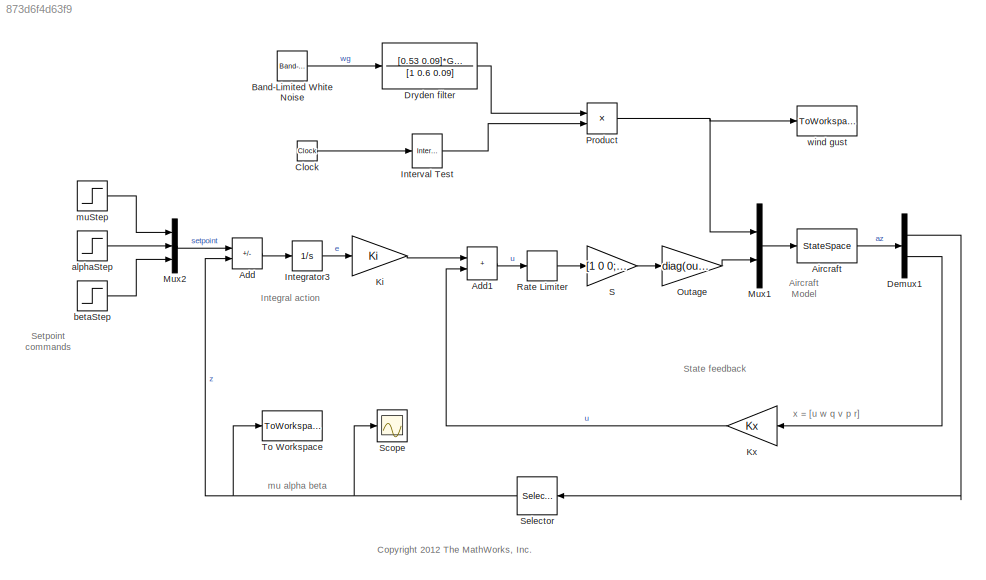
MODEL slx_873d6f4d63f9
KIND model
CONFIG AbsTol = auto
CONFIG EnableMultiTasking = on
CONFIG FixedStep = auto
CONFIG MaxStep = auto
CONFIG MinStep = auto
CONFIG PreLoadFcn = load faultTolerantAircraft
CONFIG RelTol = 1e-3
CONFIG SampleTimeConstraint = Unconstrained
CONFIG SolverName = ode45
CONFIG StartTime = 0.0
CONFIG StopTime = 10
BLOCK [Sum] Add
  IconShape = rectangular
  Inputs = +-
BLOCK [Sum] Add1
  IconShape = rectangular
BLOCK [StateSpace] Aircraft
  A = Aac
  B = Bac
  C = Cac
  D = Dac
  InitialCondition = 0
BLOCK [Reference] Band-Limited White Noise  REF=simulink/Sources/Band-Limited
White Noise
  SourceBlock = simulink/Sources/Band-Limited\nWhite Noise
  SourceType = Band-Limited White Noise.
BLOCK [Clock] Clock
BLOCK [Demux] Demux1
  Outputs = 2
BLOCK [TransferFcn] Dryden filter
  Denominator = [1  0.6  0.09]
  Numerator = [0.53 0.09]*GustSpeed
BLOCK [Integrator] Integrator3
BLOCK [Reference] Interval Test  REF=simulink/Logic and Bit
Operations/Interval Test
  SourceBlock = simulink/Logic and Bit\nOperations/Interval Test
  SourceType = Interval Test
BLOCK [Gain] Ki
  Gain = Ki
  Multiplication = Matrix(K*u) (u vector)
BLOCK [Gain] Kx
  Gain = Kx
  Multiplication = Matrix(K*u) (u vector)
BLOCK [Mux] Mux1
  DisplayOption = bar
  Inputs = 2
BLOCK [Mux] Mux2
  DisplayOption = bar
  Inputs = 3
  NameLocation = top
BLOCK [Gain] Outage
  Gain = diag(outage)
  Multiplication = Matrix(K*u) (u vector)
BLOCK [Product] Product
  RndMeth = Zero
BLOCK [RateLimiter] Rate Limiter
  FallingSlewLimit = -60
  RisingSlewLimit = 60
  SampleTimeMode = inherited
BLOCK [Gain] S
  Gain = [1 0 0;1 0 0;0 1 0;0 -1 0;0 0 1]
  Multiplication = Matrix(K*u) (u vector)
BLOCK [Scope] Scope
  Floating = off
  NumInputPorts = 1
  ScopeSpecificationString = Simulink.scopes.TimeScopeBlockCfg('CurrentConfiguration', extmgr.ConfigurationSet(extmgr.Configuration('Core','General UI',true,'ShowNewAction',false,'ShowLoadConfigSet',false,'ShowSaveConfigSet',false,'DisplayFullSourceName',false,'MessageLogAutoOpenMode','for warn/fail messages','MessageLogDialogPosition',[20 520 450 500],'ShowMainToolbar',true,'ShowPlaybackToolbar',false,'ShowStatusbar',true,'S...<+3981ch>
BLOCK [Selector] Selector
  IndexOptions = Index vector (dialog)
  Indices = [2 4 5]
  InputPortWidth = 5
  OutputSizes = 1
BLOCK [ToWorkspace] To Workspace
  MaxDataPoints = inf
  SampleTime = -1
  SaveFormat = Timeseries
  VariableName = y
BLOCK [Step] alphaStep
  After = alphaStep
  SampleTime = 0
BLOCK [Step] betaStep
  After = betaStep
  SampleTime = 0
BLOCK [Step] muStep
  After = muStep
  SampleTime = 0
BLOCK [ToWorkspace] wind gust
  MaxDataPoints = inf
  SampleTime = -1
  SaveFormat = Timeseries
  VariableName = gust
ANNOTATION (root): <copyright redacted>
ANNOTATION (root): Aircraft Model
ANNOTATION (root): Integral action
ANNOTATION (root): Setpoint commands
ANNOTATION (root): State feedback
ANNOTATION (root): mu alpha beta
ANNOTATION (root): x = [u w q v p r]
LINE Add1:1 -> Rate Limiter:1
LINE Add:1 -> Integrator3:1
LINE Aircraft:1 -> Demux1:1
LINE Band-Limited White Noise:1 -> Dryden filter:1
LINE Clock:1 -> Interval Test:1
LINE Demux1:1 -> Selector:1
LINE Demux1:2 -> Kx:1
LINE Dryden filter:1 -> Product:1
LINE Integrator3:1 -> Ki:1
LINE Interval Test:1 -> Product:2
LINE Ki:1 -> Add1:1
LINE Kx:1 -> Add1:2
LINE Mux1:1 -> Aircraft:1
LINE Mux2:1 -> Add:1
LINE Outage:1 -> Mux1:2
NET Product:1 -> Mux1:1, wind gust:1
LINE Rate Limiter:1 -> S:1
LINE S:1 -> Outage:1
NET Selector:1 -> Add:2, Scope:1, To Workspace:1
LINE alphaStep:1 -> Mux2:2
LINE betaStep:1 -> Mux2:3
LINE muStep:1 -> Mux2:1
note: NET lines group one-source signal fan-out (src -> all destinations, sorted); 1:1 wires keep LINE
